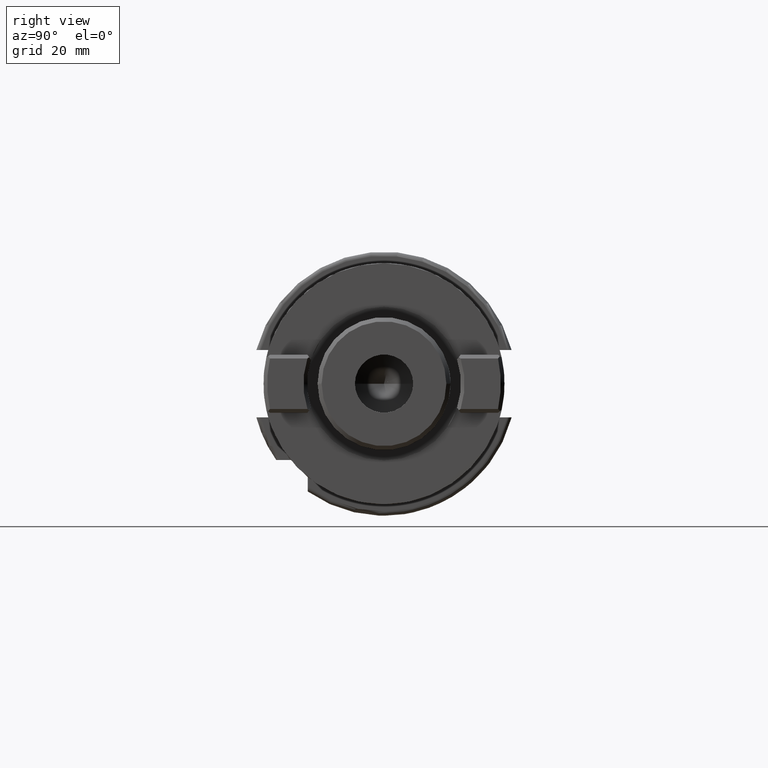
[diagram: clean part render]
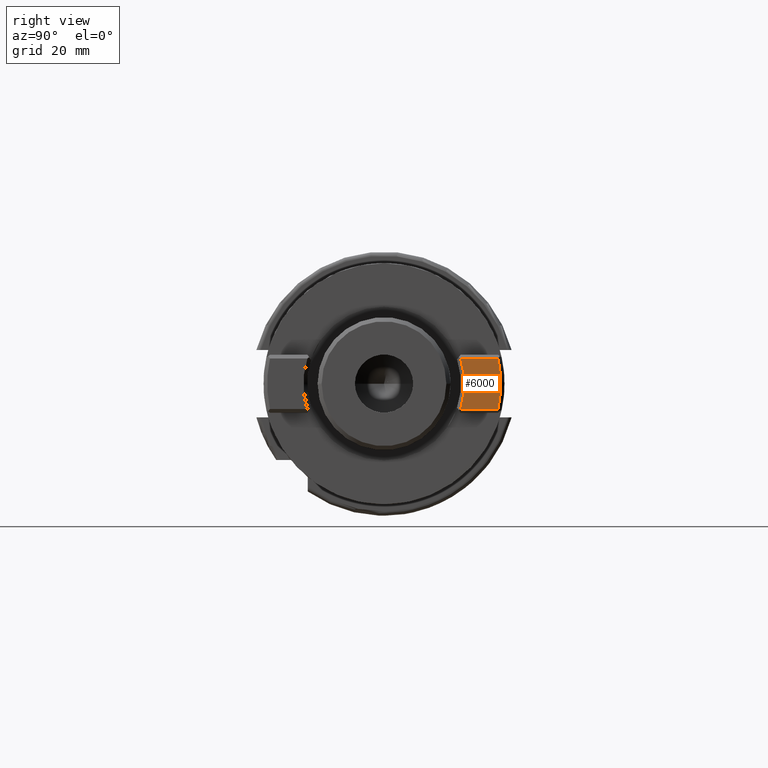
[diagram: same view with one face highlighted and labeled with its STEP entity id]
A machine part, right view. The second image highlights one B-rep face of the part: STEP entity #6000.
In plain terms, the highlighted planar face has unit normal (1, 0, 0).
Its self-contained STEP definition (entity closure, byte-faithful):
#4704=DIRECTION('',(1.774224226963E-6,-1.658264711376E-6,-9.999999999971E-1));
#4705=VECTOR('',#4704,9.010877840087E0);
#4706=CARTESIAN_POINT('',(6.072484028678E0,2.096251501644E1,-1.842513411157E1));
#4707=LINE('',#4706,#4705);
#4708=DIRECTION('',(-1.046355008149E-7,1.955162207235E-6,9.999999999981E-1));
#4709=VECTOR('',#4708,9.010914245282E0);
#4710=CARTESIAN_POINT('',(-6.072499981757E0,2.096247942824E1,
-2.743603185165E1));
#4711=LINE('',#4710,#4709);
#4720=CARTESIAN_POINT('',(7.477881274116E-6,2.09625E1,-3.029426812873E-5));
#4721=DIRECTION('',(0.E0,1.E0,0.E0));
#4722=DIRECTION('',(2.161031749503E-1,0.E0,-9.763705330336E-1));
#4723=AXIS2_PLACEMENT_3D('',#4720,#4721,#4722);
#4755=CARTESIAN_POINT('',(-3.498435117075E-5,2.09625E1,-2.099333329930E-5));
#4756=DIRECTION('',(0.E0,-1.E0,0.E0));
#4757=DIRECTION('',(-3.130140196666E-1,0.E0,-9.497485053908E-1));
#4758=AXIS2_PLACEMENT_3D('',#4755,#4756,#4757);
#5344=CARTESIAN_POINT('',(6.072500048749E0,2.09625E1,-2.743601224883E1));
#5345=CARTESIAN_POINT('',(-6.072499444996E0,2.09625E1,-2.743600907225E1));
#5346=VERTEX_POINT('',#5344);
#5347=VERTEX_POINT('',#5345);
#5352=CARTESIAN_POINT('',(-6.072502844982E0,2.09625E1,-1.842512949426E1));
#5353=CARTESIAN_POINT('',(6.072496255435E0,2.09625E1,-1.842510860591E1));
#5354=VERTEX_POINT('',#5352);
#5355=VERTEX_POINT('',#5353);
#5985=CARTESIAN_POINT('',(0.E0,2.09625E1,0.E0));
#5986=DIRECTION('',(0.E0,1.E0,0.E0));
#5987=DIRECTION('',(0.E0,0.E0,1.E0));
#5988=AXIS2_PLACEMENT_3D('',#5985,#5986,#5987);
#5989=PLANE('',#5988);
#5991=ORIENTED_EDGE('',*,*,#5990,.F.);
#5993=ORIENTED_EDGE('',*,*,#5992,.F.);
#5995=ORIENTED_EDGE('',*,*,#5994,.F.);
#5997=ORIENTED_EDGE('',*,*,#5996,.F.);
#5998=EDGE_LOOP('',(#5991,#5993,#5995,#5997));
#5999=FACE_OUTER_BOUND('',#5998,.F.);
#6000=ADVANCED_FACE('',(#5999),#5989,.T.);
#4724=CIRCLE('',#4723,2.809996924970E1);
#4759=CIRCLE('',#4758,1.939998683477E1);
#5990=EDGE_CURVE('',#5346,#5347,#4724,.T.);
#5992=EDGE_CURVE('',#5355,#5346,#4707,.T.);
#5994=EDGE_CURVE('',#5354,#5355,#4759,.T.);
#5996=EDGE_CURVE('',#5347,#5354,#4711,.T.);